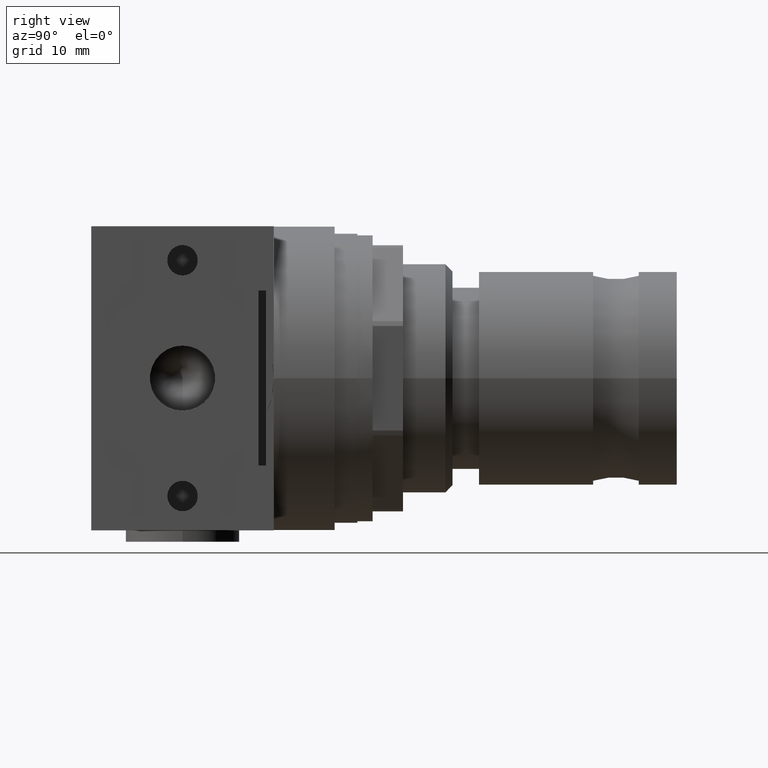
[diagram: clean part render]
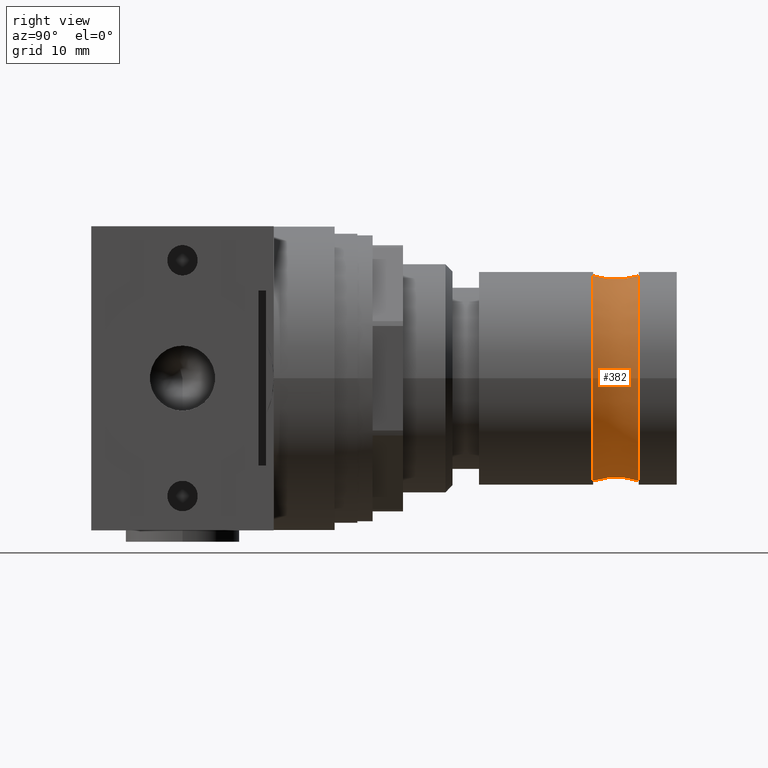
[diagram: same view with one face highlighted and labeled with its STEP entity id]
A machine part, right view. The second image highlights one B-rep face of the part: STEP entity #382.
In plain terms, the highlighted toroidal blend (fillet) surface has major radius 23.0394 mm and minor (blend) radius 10 mm.
Its self-contained STEP definition (entity closure, byte-faithful):
#382 = ADVANCED_FACE( '', ( #792, #793 ), #794, .F. );
#792 = FACE_OUTER_BOUND( '', #1237, .T. );
#793 = FACE_OUTER_BOUND( '', #1238, .T. );
#794 = TOROIDAL_SURFACE( '', #1239, 23.0393920141694, 9.99999999999998 );
#1237 = EDGE_LOOP( '', ( #2071 ) );
#1238 = EDGE_LOOP( '', ( #2072 ) );
#1239 = AXIS2_PLACEMENT_3D( '', #2073, #2074, #2075 );
#2071 = ORIENTED_EDGE( '', *, *, #2743, .F. );
#2072 = ORIENTED_EDGE( '', *, *, #2630, .T. );
#2073 = CARTESIAN_POINT( '', ( 37.0000000000000, 0.000000000000000, 0.000000000000000 ) );
#2074 = DIRECTION( '', ( 1.00000000000000, 0.000000000000000, -0.000000000000000 ) );
#2075 = DIRECTION( '', ( -0.000000000000000, 0.000000000000000, -1.00000000000000 ) );
#2630 = EDGE_CURVE( '', #3149, #3149, #3150, .T. );
#2743 = EDGE_CURVE( '', #3309, #3309, #3310, .T. );
#3149 = VERTEX_POINT( '', #3830 );
#3150 = CIRCLE( '', #3831, 13.5000000000000 );
#3309 = VERTEX_POINT( '', #4043 );
#3310 = CIRCLE( '', #4044, 13.5000000000000 );
#3830 = CARTESIAN_POINT( '', ( 34.0000000000000, 0.000000000000000, -13.5000000000000 ) );
#3831 = AXIS2_PLACEMENT_3D( '', #4402, #4403, #4404 );
#4043 = CARTESIAN_POINT( '', ( 40.0000000000000, 0.000000000000000, -13.5000000000000 ) );
#4044 = AXIS2_PLACEMENT_3D( '', #4521, #4522, #4523 );
#4402 = CARTESIAN_POINT( '', ( 34.0000000000000, 0.000000000000000, 0.000000000000000 ) );
#4403 = DIRECTION( '', ( 1.00000000000000, 0.000000000000000, -0.000000000000000 ) );
#4404 = DIRECTION( '', ( -0.000000000000000, 0.000000000000000, -1.00000000000000 ) );
#4521 = CARTESIAN_POINT( '', ( 40.0000000000000, 0.000000000000000, 0.000000000000000 ) );
#4522 = DIRECTION( '', ( 1.00000000000000, 0.000000000000000, -0.000000000000000 ) );
#4523 = DIRECTION( '', ( -0.000000000000000, 0.000000000000000, -1.00000000000000 ) );